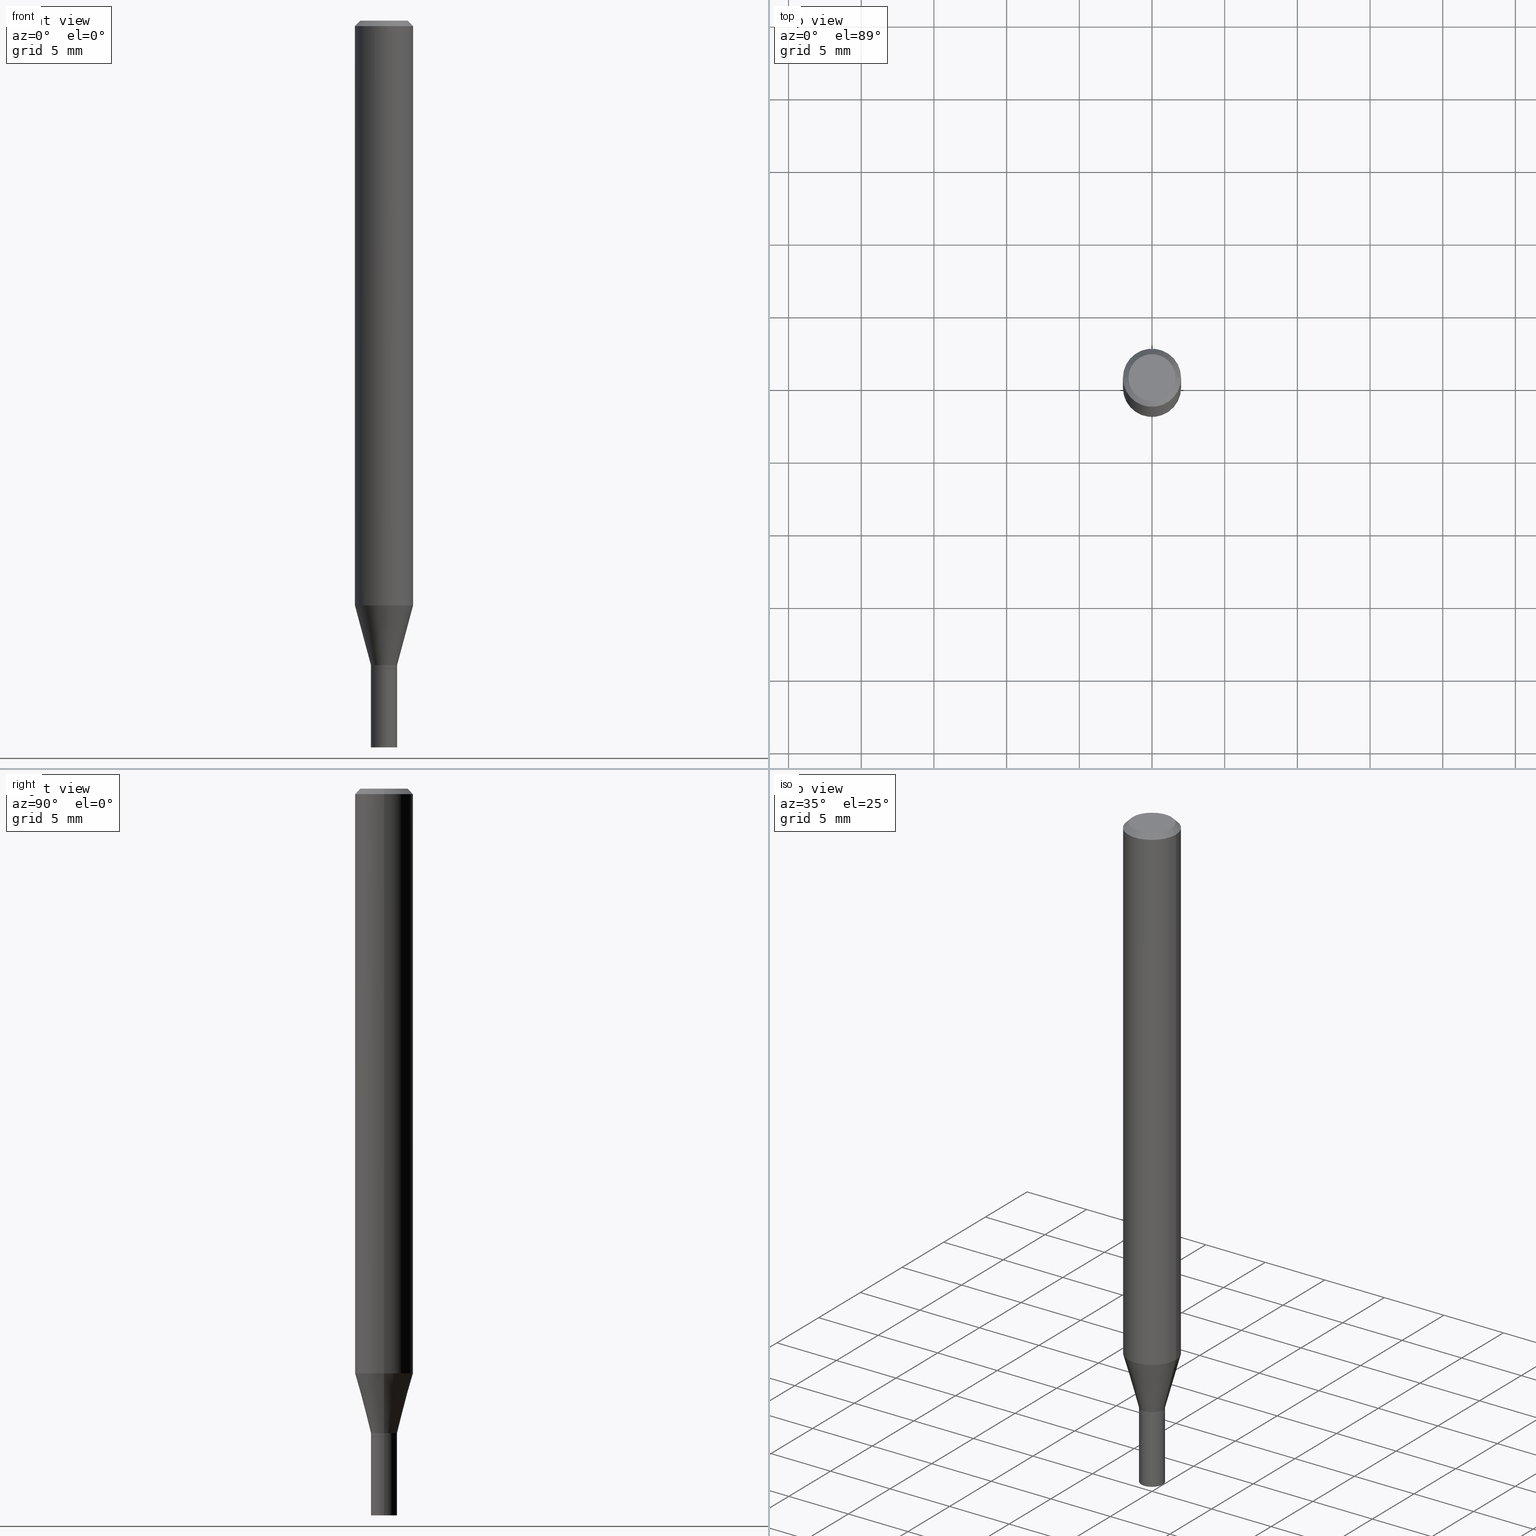
[diagram: canonical four-view strip — front | top / right | iso, engineering-drawing reading convention]
A machine part, canonical four-view strip (front | top / right | iso — engineering-drawing reading convention). The complete STEP part file that produces these views, byte-faithful:
ISO-10303-21;
HEADER;
FILE_DESCRIPTION (( 'STEP AP203' ),
    '1' );
FILE_NAME ('01891.STEP',
    '2024-03-20T02:31:54',
    ( '' ),
    ( '' ),
    'SwSTEP 2.0',
    'SolidWorks 2023',
    '' );
FILE_SCHEMA (( 'CONFIG_CONTROL_DESIGN' ));
ENDSEC;

DATA;
#1 = PERSON_AND_ORGANIZATION ( #408, #456 ) ;
#2 = DIRECTION ( 'NONE',  ( 1.000000000000000000, -6.982962677686254089E-15, 0.000000000000000000 ) ) ;
#3 = DIMENSIONAL_EXPONENTS ( 1.000000000000000000, 0.000000000000000000, 0.000000000000000000, 0.000000000000000000, 0.000000000000000000, 0.000000000000000000, 0.000000000000000000 ) ;
#4 = DIRECTION ( 'NONE',  ( 0.000000000000000000, 0.000000000000000000, 1.000000000000000000 ) ) ;
#5 = DIRECTION ( 'NONE',  ( -2.445468806185136597E-29, 3.491481338843145583E-15, 1.000000000000000000 ) ) ;
#6 = ADVANCED_FACE ( 'NONE', ( #333 ), #220, .T. ) ;
#7 = DIRECTION ( 'NONE',  ( 1.000000000000000000, 0.000000000000000000, 0.000000000000000000 ) ) ;
#8 = DIRECTION ( 'NONE',  ( -2.445468806185136597E-29, 3.491481338843145583E-15, 1.000000000000000000 ) ) ;
#9 = AXIS2_PLACEMENT_3D ( 'NONE', #32, #317, #66 ) ;
#10 = AXIS2_PLACEMENT_3D ( 'NONE', #104, #352, #25 ) ;
#11 = AXIS2_PLACEMENT_3D ( 'NONE', #365, #225, #231 ) ;
#12 = DIRECTION ( 'NONE',  ( 1.000000000000000000, -6.982962677686268288E-15, 0.000000000000000000 ) ) ;
#13 = DIRECTION ( 'NONE',  ( -2.445468806185136597E-29, 3.491481338843145583E-15, 1.000000000000000000 ) ) ;
#14 = CARTESIAN_POINT ( 'NONE',  ( 0.03495000000000000190, -6.374746628459814078E-15, -1.755899999999999794 ) ) ;
#15 = AXIS2_PLACEMENT_3D ( 'NONE', #98, #13, #205 ) ;
#16 = DIRECTION ( 'NONE',  ( 1.000000000000000000, -6.982962677686254089E-15, 0.000000000000000000 ) ) ;
#17 = DIRECTION ( 'NONE',  ( -2.445468806185136597E-29, 3.491481338843145583E-15, 1.000000000000000000 ) ) ;
#18 = ADVANCED_FACE ( 'NONE', ( #300 ), #258, .T. ) ;
#19 = LINE ( 'NONE', #133, #283 ) ;
#20 = APPLICATION_CONTEXT ( 'configuration controlled 3d designs of mechanical parts and assemblies' ) ;
#21 = AXIS2_PLACEMENT_3D ( 'NONE', #199, #122, #341 ) ;
#22 = CARTESIAN_POINT ( 'NONE',  ( 3.873383422226918900E-29, -5.530164973965262003E-15, -1.583902200032266672 ) ) ;
#23 = EDGE_LOOP ( 'NONE', ( #271, #255, #378, #165 ) ) ;
#24 = ADVANCED_FACE ( 'NONE', ( #156 ), #336, .F. ) ;
#25 = DIRECTION ( 'NONE',  ( 1.000000000000000000, -6.982962677686265922E-15, 4.876176775795935232E-29 ) ) ;
#26 = EDGE_LOOP ( 'NONE', ( #328, #29, #183, #274 ) ) ;
#27 = EDGE_CURVE ( 'NONE', #407, #72, #39, .T. ) ;
#28 =( LENGTH_UNIT ( ) NAMED_UNIT ( * ) SI_UNIT ( $, .METRE. ) );
#29 = ORIENTED_EDGE ( 'NONE', *, *, #413, .T. ) ;
#30 = VECTOR ( 'NONE', #356, 39.37007874015747433 ) ;
#31 = LOCAL_TIME ( 22, 31, 54.00000000000000000, #115 ) ;
#32 = CARTESIAN_POINT ( 'NONE',  ( 3.668203209277705088E-31, -5.237222008264718399E-17, -0.01499999999999999944 ) ) ;
#33 = VERTEX_POINT ( 'NONE', #228 ) ;
#34 = CARTESIAN_POINT ( 'NONE',  ( 0.000000000000000000, 0.000000000000000000, 0.000000000000000000 ) ) ;
#35 = EDGE_CURVE ( 'NONE', #194, #360, #236, .T. ) ;
#36 = ORIENTED_EDGE ( 'NONE', *, *, #213, .T. ) ;
#37 = APPROVAL ( #80, 'UNSPECIFIED' ) ;
#38 = PERSON_AND_ORGANIZATION_ROLE ( 'design_supplier' ) ;
#39 = LINE ( 'NONE', #192, #75 ) ;
#40 =( NAMED_UNIT ( * ) PLANE_ANGLE_UNIT ( ) SI_UNIT ( $, .RADIAN. ) );
#41 = AXIS2_PLACEMENT_3D ( 'NONE', #96, #412, #93 ) ;
#42 = CARTESIAN_POINT ( 'NONE',  ( -0.03544999999999964846, -5.877058942378305469E-15, -1.755400000000000071 ) ) ;
#43 = CC_DESIGN_SECURITY_CLASSIFICATION ( #350, ( #219 ) ) ;
#44 = ADVANCED_FACE ( 'NONE', ( #89 ), #147, .T. ) ;
#45 = COORDINATED_UNIVERSAL_TIME_OFFSET ( 5, 0, .BEHIND. ) ;
#46 = ORIENTED_EDGE ( 'NONE', *, *, #453, .T. ) ;
#47 = CALENDAR_DATE ( 2024, 19, 3 ) ;
#48 = DIRECTION ( 'NONE',  ( -2.445468806185136597E-29, 3.491481338843145583E-15, 1.000000000000000000 ) ) ;
#49 = COORDINATED_UNIVERSAL_TIME_OFFSET ( 5, 0, .BEHIND. ) ;
#50 = DIRECTION ( 'NONE',  ( 1.000000000000000000, -6.982962677686269866E-15, 0.000000000000000000 ) ) ;
#51 = AXIS2_PLACEMENT_3D ( 'NONE', #61, #282, #235 ) ;
#52 = CC_DESIGN_APPROVAL ( #417, ( #135 ) ) ;
#53 = DIRECTION ( 'NONE',  ( -2.445468806185136597E-29, 3.491481338843145583E-15, 1.000000000000000000 ) ) ;
#54 = APPROVAL ( #78, 'UNSPECIFIED' ) ;
#55 = DIRECTION ( 'NONE',  ( -2.445468806185136597E-29, 3.491481338843145583E-15, 1.000000000000000000 ) ) ;
#56 = SHAPE_DEFINITION_REPRESENTATION ( #214, #388 ) ;
#57 = DIRECTION ( 'NONE',  ( 1.000000000000000000, -6.982962677686265922E-15, 0.000000000000000000 ) ) ;
#58 = CIRCLE ( 'NONE', #64, 0.07875000000000000056 ) ;
#59 = CC_DESIGN_PERSON_AND_ORGANIZATION_ASSIGNMENT ( #329, #432, ( #350 ) ) ;
#60 = DIRECTION ( 'NONE',  ( -2.445468806185136597E-29, 3.491481338843145583E-15, 1.000000000000000000 ) ) ;
#61 = CARTESIAN_POINT ( 'NONE',  ( 4.268565801196156073E-29, -6.094380676950710350E-15, -1.745500000000000052 ) ) ;
#62 = DIRECTION ( 'NONE',  ( 1.000000000000000000, -6.982962677686265922E-15, 4.876176775795935793E-29 ) ) ;
#63 = ORIENTED_EDGE ( 'NONE', *, *, #372, .T. ) ;
#64 = AXIS2_PLACEMENT_3D ( 'NONE', #22, #451, #420 ) ;
#65 = CLOSED_SHELL ( 'NONE', ( #398, #335, #367, #178 ) ) ;
#66 = DIRECTION ( 'NONE',  ( -1.000000000000000000, 6.982962677686265922E-15, 0.000000000000000000 ) ) ;
#67 = ORIENTED_EDGE ( 'NONE', *, *, #345, .F. ) ;
#68 = EDGE_CURVE ( 'NONE', #452, #208, #430, .T. ) ;
#69 = CARTESIAN_POINT ( 'NONE',  ( -0.03545000000000000234, -6.249949149366749676E-15, -1.968500000000000139 ) ) ;
#70 = ORIENTED_EDGE ( 'NONE', *, *, #280, .T. ) ;
#71 = CYLINDRICAL_SURFACE ( 'NONE', #357, 0.03545000000000000234 ) ;
#72 = VERTEX_POINT ( 'NONE', #302 ) ;
#73 = CIRCLE ( 'NONE', #132, 0.03545000000000000234 ) ;
#74 = LINE ( 'NONE', #291, #381 ) ;
#75 = VECTOR ( 'NONE', #373, 39.37007874015748143 ) ;
#76 = CIRCLE ( 'NONE', #15, 0.03495000000000000190 ) ;
#77 = ORIENTED_EDGE ( 'NONE', *, *, #453, .F. ) ;
#78 = APPROVAL_STATUS ( 'not_yet_approved' ) ;
#79 = EDGE_LOOP ( 'NONE', ( #175, #421 ) ) ;
#80 = APPROVAL_STATUS ( 'not_yet_approved' ) ;
#81 = CARTESIAN_POINT ( 'NONE',  ( 4.268565801196156073E-29, -6.094380676950710350E-15, -1.745500000000000052 ) ) ;
#82 = PERSON_AND_ORGANIZATION ( #408, #456 ) ;
#83 = AXIS2_PLACEMENT_3D ( 'NONE', #436, #187, #50 ) ;
#84 = CARTESIAN_POINT ( 'NONE',  ( 4.451638707024993845E-16, 0.06375000000000000111, -3.383373223977406317E-16 ) ) ;
#85 =( GEOMETRIC_REPRESENTATION_CONTEXT ( 3 ) GLOBAL_UNCERTAINTY_ASSIGNED_CONTEXT ( ( #181 ) ) GLOBAL_UNIT_ASSIGNED_CONTEXT ( ( #397, #40, #334 ) ) REPRESENTATION_CONTEXT ( 'NONE', 'WORKASPACE' ) );
#86 = CC_DESIGN_DATE_AND_TIME_ASSIGNMENT ( #224, #339, ( #135 ) ) ;
#87 = DATE_AND_TIME ( #297, #127 ) ;
#88 = ORIENTED_EDGE ( 'NONE', *, *, #94, .F. ) ;
#89 = FACE_OUTER_BOUND ( 'NONE', #351, .T. ) ;
#90 = CARTESIAN_POINT ( 'NONE',  ( 4.813905344975441835E-29, -6.872981015512731707E-15, -1.968500000000000139 ) ) ;
#91 = AXIS2_PLACEMENT_3D ( 'NONE', #90, #60, #16 ) ;
#92 = CARTESIAN_POINT ( 'NONE',  ( 4.293998676780481075E-29, -6.130692082874678413E-15, -1.755899999999999794 ) ) ;
#93 = DIRECTION ( 'NONE',  ( 1.000000000000000000, -6.982962677686267499E-15, 4.876176775795936353E-29 ) ) ;
#94 = EDGE_CURVE ( 'NONE', #177, #102, #296, .T. ) ;
#95 = ADVANCED_FACE ( 'NONE', ( #330 ), #267, .T. ) ;
#96 = CARTESIAN_POINT ( 'NONE',  ( 0.000000000000000000, 0.000000000000000000, 0.000000000000000000 ) ) ;
#97 = CIRCLE ( 'NONE', #276, 0.03544999999999965540 ) ;
#98 = CARTESIAN_POINT ( 'NONE',  ( 4.293998676780481075E-29, -6.130692082874678413E-15, -1.755899999999999794 ) ) ;
#99 = DIRECTION ( 'NONE',  ( -2.445468806185136597E-29, 3.491481338843145583E-15, 1.000000000000000000 ) ) ;
#100 = VERTEX_POINT ( 'NONE', #163 ) ;
#101 = FACE_OUTER_BOUND ( 'NONE', #247, .T. ) ;
#102 = VERTEX_POINT ( 'NONE', #42 ) ;
#103 = AXIS2_PLACEMENT_3D ( 'NONE', #106, #391, #462 ) ;
#104 = CARTESIAN_POINT ( 'NONE',  ( 0.000000000000000000, 0.000000000000000000, 0.000000000000000000 ) ) ;
#105 = ORIENTED_EDGE ( 'NONE', *, *, #251, .T. ) ;
#106 = CARTESIAN_POINT ( 'NONE',  ( 3.873383422226918900E-29, -5.530164973965262003E-15, -1.583902200032266672 ) ) ;
#107 = ORIENTED_EDGE ( 'NONE', *, *, #312, .F. ) ;
#108 = EDGE_CURVE ( 'NONE', #72, #306, #260, .T. ) ;
#109 = DIRECTION ( 'NONE',  ( -0.7071067811865530128, 2.468850131082314253E-15, -0.7071067811865420216 ) ) ;
#110 = ORIENTED_EDGE ( 'NONE', *, *, #222, .F. ) ;
#111 = AXIS2_PLACEMENT_3D ( 'NONE', #233, #48, #149 ) ;
#112 = APPROVAL_STATUS ( 'not_yet_approved' ) ;
#113 = AXIS2_PLACEMENT_3D ( 'NONE', #81, #305, #12 ) ;
#114 = VERTEX_POINT ( 'NONE', #298 ) ;
#115 = COORDINATED_UNIVERSAL_TIME_OFFSET ( 5, 0, .BEHIND. ) ;
#116 = EDGE_CURVE ( 'NONE', #292, #177, #191, .T. ) ;
#117 = CARTESIAN_POINT ( 'NONE',  ( 3.668203209277705088E-31, -5.237222008264718399E-17, -0.01499999999999999944 ) ) ;
#118 = DATE_AND_TIME ( #150, #395 ) ;
#119 = FACE_OUTER_BOUND ( 'NONE', #79, .T. ) ;
#120 = CONICAL_SURFACE ( 'NONE', #126, 0.03495000000000000190, 0.7853981633974739252 ) ;
#121 = PERSON_AND_ORGANIZATION_ROLE ( 'creator' ) ;
#122 = DIRECTION ( 'NONE',  ( -2.445468806185136597E-29, 3.491481338843145583E-15, 1.000000000000000000 ) ) ;
#123 = CARTESIAN_POINT ( 'NONE',  ( 4.813905344975441835E-29, -6.872981015512731707E-15, -1.968500000000000139 ) ) ;
#124 = DIRECTION ( 'NONE',  ( -2.445468806185136597E-29, 3.491481338843145583E-15, 1.000000000000000000 ) ) ;
#125 = DIRECTION ( 'NONE',  ( 1.000000000000000000, -6.982962677686269866E-15, 0.000000000000000000 ) ) ;
#126 = AXIS2_PLACEMENT_3D ( 'NONE', #92, #202, #237 ) ;
#127 = LOCAL_TIME ( 22, 31, 54.00000000000000000, #45 ) ;
#128 = DIRECTION ( 'NONE',  ( -2.445468806185136877E-29, 3.491481338843145188E-15, 1.000000000000000000 ) ) ;
#129 = DIRECTION ( 'NONE',  ( 1.000000000000000000, -6.982962677686265922E-15, 4.876176775795935232E-29 ) ) ;
#130 = FACE_OUTER_BOUND ( 'NONE', #139, .T. ) ;
#131 = AXIS2_PLACEMENT_3D ( 'NONE', #184, #211, #359 ) ;
#132 = AXIS2_PLACEMENT_3D ( 'NONE', #377, #55, #344 ) ;
#133 = CARTESIAN_POINT ( 'NONE',  ( -0.03545000000000000234, 2.518873998269555325E-16, -1.743762489495364089E-30 ) ) ;
#134 = ORIENTED_EDGE ( 'NONE', *, *, #94, .T. ) ;
#135 = PRODUCT_DEFINITION ( 'UNKNOWN', '', #219, #140 ) ;
#136 = FACE_OUTER_BOUND ( 'NONE', #318, .T. ) ;
#137 = ORIENTED_EDGE ( 'NONE', *, *, #312, .T. ) ;
#138 = LINE ( 'NONE', #287, #198 ) ;
#139 = EDGE_LOOP ( 'NONE', ( #450, #36, #238, #294 ) ) ;
#140 = DESIGN_CONTEXT ( 'detailed design', #20, 'design' ) ;
#141 = DIRECTION ( 'NONE',  ( -0.7071067811865656694, 7.493145998870420424E-15, 0.7071067811865294761 ) ) ;
#142 = ORIENTED_EDGE ( 'NONE', *, *, #27, .T. ) ;
#143 = CARTESIAN_POINT ( 'NONE',  ( 0.07875000000000000056, -6.080073284833056138E-15, -1.583902200032266672 ) ) ;
#144 = ORIENTED_EDGE ( 'NONE', *, *, #402, .T. ) ;
#145 = DIRECTION ( 'NONE',  ( -2.438088387897960049E-29, 3.491481338843145188E-15, 1.000000000000000000 ) ) ;
#146 = ORIENTED_EDGE ( 'NONE', *, *, #326, .F. ) ;
#147 = CONICAL_SURFACE ( 'NONE', #111, 0.03544999999999965540, 0.2617993877991501295 ) ;
#148 = PERSON_AND_ORGANIZATION ( #408, #456 ) ;
#149 = DIRECTION ( 'NONE',  ( 1.000000000000000000, -6.982962677686268288E-15, 0.000000000000000000 ) ) ;
#150 = CALENDAR_DATE ( 2024, 19, 3 ) ;
#151 = ADVANCED_FACE ( 'NONE', ( #119 ), #404, .F. ) ;
#152 = DIRECTION ( 'NONE',  ( 1.000000000000000000, -6.982962677686265922E-15, 0.000000000000000000 ) ) ;
#153 = PRODUCT ( '01891', '01891', '', ( #158 ) ) ;
#154 = PERSON_AND_ORGANIZATION ( #408, #456 ) ;
#155 = MANIFOLD_SOLID_BREP ( 'Body-Move/Copy2[2]', #310 ) ;
#156 = FACE_OUTER_BOUND ( 'NONE', #466, .T. ) ;
#157 = CIRCLE ( 'NONE', #131, 0.03495000000000000190 ) ;
#158 = MECHANICAL_CONTEXT ( 'NONE', #275, 'mechanical' ) ;
#159 = ORIENTED_EDGE ( 'NONE', *, *, #160, .F. ) ;
#160 = EDGE_CURVE ( 'NONE', #100, #33, #331, .T. ) ;
#161 = CC_DESIGN_DATE_AND_TIME_ASSIGNMENT ( #264, #434, ( #350 ) ) ;
#162 = MANIFOLD_SOLID_BREP ( 'Body-Move/Copy2[1]', #65 ) ;
#163 = CARTESIAN_POINT ( 'NONE',  ( -0.06375000000000000111, 4.713499807438225296E-16, -2.315107740929834566E-16 ) ) ;
#164 = DIRECTION ( 'NONE',  ( 1.000000000000000000, -6.982962677686265922E-15, 4.852736867747365646E-29 ) ) ;
#165 = ORIENTED_EDGE ( 'NONE', *, *, #195, .F. ) ;
#166 = EDGE_CURVE ( 'NONE', #102, #114, #170, .T. ) ;
#167 = FACE_OUTER_BOUND ( 'NONE', #23, .T. ) ;
#168 = DIRECTION ( 'NONE',  ( -2.445468806185136877E-29, 3.491481338843145188E-15, 1.000000000000000000 ) ) ;
#169 = CC_DESIGN_PERSON_AND_ORGANIZATION_ASSIGNMENT ( #272, #464, ( #153 ) ) ;
#170 = LINE ( 'NONE', #240, #248 ) ;
#171 = DIRECTION ( 'NONE',  ( -1.000000000000000000, 6.982962677686265922E-15, -4.876176775795935793E-29 ) ) ;
#172 = AXIS2_PLACEMENT_3D ( 'NONE', #448, #314, #171 ) ;
#173 = AXIS2_PLACEMENT_3D ( 'NONE', #362, #370, #433 ) ;
#174 = LINE ( 'NONE', #319, #241 ) ;
#175 = ORIENTED_EDGE ( 'NONE', *, *, #160, .T. ) ;
#176 = CARTESIAN_POINT ( 'NONE',  ( -0.03545000000000000234, -6.249949149366749676E-15, -1.755900000000000016 ) ) ;
#177 = VERTEX_POINT ( 'NONE', #444 ) ;
#178 = ADVANCED_FACE ( 'NONE', ( #277 ), #278, .F. ) ;
#179 = ORIENTED_EDGE ( 'NONE', *, *, #389, .T. ) ;
#180 = VECTOR ( 'NONE', #252, 39.37007874015748143 ) ;
#181 = UNCERTAINTY_MEASURE_WITH_UNIT (LENGTH_MEASURE( 1.000000000000000082E-05 ), #397, 'distance_accuracy_value', 'NONE');
#182 = CYLINDRICAL_SURFACE ( 'NONE', #446, 0.03545000000000000234 ) ;
#183 = ORIENTED_EDGE ( 'NONE', *, *, #345, .T. ) ;
#184 = CARTESIAN_POINT ( 'NONE',  ( 4.293998676780481075E-29, -6.130692082874678413E-15, -1.755899999999999794 ) ) ;
#185 = EDGE_LOOP ( 'NONE', ( #212, #63, #322, #77 ) ) ;
#186 = SECURITY_CLASSIFICATION_LEVEL ( 'unclassified' ) ;
#187 = DIRECTION ( 'NONE',  ( -2.445468806185136597E-29, 3.491481338843145583E-15, 1.000000000000000000 ) ) ;
#188 = EDGE_CURVE ( 'NONE', #33, #100, #256, .T. ) ;
#189 = AXIS2_PLACEMENT_3D ( 'NONE', #440, #17, #125 ) ;
#190 = CALENDAR_DATE ( 2024, 19, 3 ) ;
#191 = LINE ( 'NONE', #435, #374 ) ;
#192 = CARTESIAN_POINT ( 'NONE',  ( -0.07875000000000000056, 5.595524044110789003E-16, -3.873661383575737792E-30 ) ) ;
#193 = EDGE_CURVE ( 'NONE', #360, #452, #19, .T. ) ;
#194 = VERTEX_POINT ( 'NONE', #311 ) ;
#195 = EDGE_CURVE ( 'NONE', #114, #215, #97, .T. ) ;
#196 = VECTOR ( 'NONE', #384, 39.37007874015748143 ) ;
#197 = CARTESIAN_POINT ( 'NONE',  ( 0.000000000000000000, 0.000000000000000000, 0.000000000000000000 ) ) ;
#198 = VECTOR ( 'NONE', #354, 39.37007874015747433 ) ;
#199 = CARTESIAN_POINT ( 'NONE',  ( 0.000000000000000000, 0.000000000000000000, 0.000000000000000000 ) ) ;
#200 = AXIS2_PLACEMENT_3D ( 'NONE', #244, #201, #57 ) ;
#201 = DIRECTION ( 'NONE',  ( -2.445468806185136597E-29, 3.491481338843145583E-15, 1.000000000000000000 ) ) ;
#202 = DIRECTION ( 'NONE',  ( -2.445468806185136597E-29, 3.491481338843145583E-15, 1.000000000000000000 ) ) ;
#203 = CARTESIAN_POINT ( 'NONE',  ( 0.07875000000000000056, -6.022805309504406221E-16, -0.01499999999999999944 ) ) ;
#204 = LOCAL_TIME ( 22, 31, 54.00000000000000000, #49 ) ;
#205 = DIRECTION ( 'NONE',  ( 1.000000000000000000, -6.982962677686267499E-15, 0.000000000000000000 ) ) ;
#206 = CARTESIAN_POINT ( 'NONE',  ( 5.661523763401571692E-45, -8.083155474867715899E-31, -2.315107740929802519E-16 ) ) ;
#207 = FACE_OUTER_BOUND ( 'NONE', #428, .T. ) ;
#208 = VERTEX_POINT ( 'NONE', #313 ) ;
#209 = CIRCLE ( 'NONE', #91, 0.03545000000000000234 ) ;
#210 = APPROVAL_PERSON_ORGANIZATION ( #405, #54, #227 ) ;
#211 = DIRECTION ( 'NONE',  ( -2.445468806185136597E-29, 3.491481338843145583E-15, 1.000000000000000000 ) ) ;
#212 = ORIENTED_EDGE ( 'NONE', *, *, #226, .T. ) ;
#213 = EDGE_CURVE ( 'NONE', #463, #292, #76, .T. ) ;
#214 = PRODUCT_DEFINITION_SHAPE ( 'NONE', 'NONE',  #135 ) ;
#215 = VERTEX_POINT ( 'NONE', #284 ) ;
#216 = CARTESIAN_POINT ( 'NONE',  ( 0.000000000000000000, 0.000000000000000000, 0.000000000000000000 ) ) ;
#217 = ORIENTED_EDGE ( 'NONE', *, *, #166, .T. ) ;
#218 = CONICAL_SURFACE ( 'NONE', #9, 0.07875000000000000056, 0.7853981633974560506 ) ;
#219 = PRODUCT_DEFINITION_FORMATION_WITH_SPECIFIED_SOURCE ( 'ANY', '', #153, .NOT_KNOWN. ) ;
#220 = CONICAL_SURFACE ( 'NONE', #11, 0.07875000000000000056, 0.7853981633974560506 ) ;
#221 = DIRECTION ( 'NONE',  ( -2.445468806185136597E-29, 3.491481338843145583E-15, 1.000000000000000000 ) ) ;
#222 = EDGE_CURVE ( 'NONE', #360, #194, #209, .T. ) ;
#223 = EDGE_LOOP ( 'NONE', ( #179, #253, #88, #419 ) ) ;
#224 = DATE_AND_TIME ( #47, #204 ) ;
#225 = DIRECTION ( 'NONE',  ( 2.445468806185136597E-29, -3.491481338843145583E-15, -1.000000000000000000 ) ) ;
#226 = EDGE_CURVE ( 'NONE', #215, #114, #415, .T. ) ;
#227 = APPROVAL_ROLE ( '' ) ;
#228 = CARTESIAN_POINT ( 'NONE',  ( 0.06375000000000000111, -5.149965923825456210E-16, -2.315107740929768499E-16 ) ) ;
#229 = AXIS2_PLACEMENT_3D ( 'NONE', #348, #53, #164 ) ;
#230 = DIRECTION ( 'NONE',  ( 2.438088387897960049E-29, -3.491481338843145188E-15, -1.000000000000000000 ) ) ;
#231 = DIRECTION ( 'NONE',  ( -1.000000000000000000, 6.982962677686265922E-15, 0.000000000000000000 ) ) ;
#232 = COORDINATED_UNIVERSAL_TIME_OFFSET ( 5, 0, .BEHIND. ) ;
#233 = CARTESIAN_POINT ( 'NONE',  ( 4.268565801196156073E-29, -6.094380676950710350E-15, -1.745500000000000052 ) ) ;
#234 = AXIS2_PLACEMENT_3D ( 'NONE', #206, #346, #442 ) ;
#235 = DIRECTION ( 'NONE',  ( 1.000000000000000000, -6.982962677686268288E-15, 0.000000000000000000 ) ) ;
#236 = CIRCLE ( 'NONE', #316, 0.03545000000000000234 ) ;
#237 = DIRECTION ( 'NONE',  ( 1.000000000000000000, -6.982962677686267499E-15, 0.000000000000000000 ) ) ;
#238 = ORIENTED_EDGE ( 'NONE', *, *, #116, .T. ) ;
#239 = ADVANCED_FACE ( 'NONE', ( #347 ), #376, .T. ) ;
#240 = CARTESIAN_POINT ( 'NONE',  ( -0.03544999999999964846, 2.518873998269530180E-16, -1.743762489495346923E-30 ) ) ;
#241 = VECTOR ( 'NONE', #285, 39.37007874015748143 ) ;
#242 = DIRECTION ( 'NONE',  ( 1.000000000000000000, -6.982962677686268288E-15, 0.000000000000000000 ) ) ;
#243 = ADVANCED_FACE ( 'NONE', ( #130 ), #465, .T. ) ;
#244 = CARTESIAN_POINT ( 'NONE',  ( 3.668203209277705088E-31, -5.237222008264718399E-17, -0.01499999999999999944 ) ) ;
#245 = CARTESIAN_POINT ( 'NONE',  ( 0.07875000000000000056, -5.926364374071552647E-16, -0.01499999999999999944 ) ) ;
#246 = CYLINDRICAL_SURFACE ( 'NONE', #10, 0.07875000000000000056 ) ;
#247 = EDGE_LOOP ( 'NONE', ( #386, #142, #458, #67 ) ) ;
#248 = VECTOR ( 'NONE', #168, 39.37007874015748143 ) ;
#249 = CARTESIAN_POINT ( 'NONE',  ( 0.03545000000000000234, -2.475460269239781793E-16, 1.728604667019659440E-30 ) ) ;
#250 = ORIENTED_EDGE ( 'NONE', *, *, #280, .F. ) ;
#251 = EDGE_CURVE ( 'NONE', #306, #72, #366, .T. ) ;
#252 = DIRECTION ( 'NONE',  ( -2.445468806185136877E-29, 3.491481338843145188E-15, 1.000000000000000000 ) ) ;
#253 = ORIENTED_EDGE ( 'NONE', *, *, #342, .T. ) ;
#254 = LINE ( 'NONE', #385, #180 ) ;
#255 = ORIENTED_EDGE ( 'NONE', *, *, #259, .T. ) ;
#256 = CIRCLE ( 'NONE', #229, 0.06375000000000000111 ) ;
#257 = CC_DESIGN_APPROVAL ( #37, ( #350 ) ) ;
#258 = CONICAL_SURFACE ( 'NONE', #113, 0.03544999999999965540, 0.2617993877991501295 ) ;
#259 = EDGE_CURVE ( 'NONE', #102, #177, #441, .T. ) ;
#260 = CIRCLE ( 'NONE', #304, 0.07875000000000000056 ) ;
#261 = PERSON_AND_ORGANIZATION ( #408, #456 ) ;
#262 = CC_DESIGN_PERSON_AND_ORGANIZATION_ASSIGNMENT ( #261, #361, ( #219 ) ) ;
#263 = ORIENTED_EDGE ( 'NONE', *, *, #193, .F. ) ;
#264 = DATE_AND_TIME ( #190, #31 ) ;
#265 = DIRECTION ( 'NONE',  ( 0.7071067811865656694, -2.468850131082446387E-15, 0.7071067811865294761 ) ) ;
#266 = APPROVAL_DATE_TIME ( #118, #37 ) ;
#267 = CYLINDRICAL_SURFACE ( 'NONE', #21, 0.03544999999999964846 ) ;
#268 = ADVANCED_FACE ( 'NONE', ( #414 ), #120, .T. ) ;
#269 = CC_DESIGN_APPROVAL ( #54, ( #219 ) ) ;
#270 = DATE_AND_TIME ( #301, #338 ) ;
#271 = ORIENTED_EDGE ( 'NONE', *, *, #166, .F. ) ;
#272 = PERSON_AND_ORGANIZATION ( #408, #456 ) ;
#273 = DIRECTION ( 'NONE',  ( 1.000000000000000000, -6.982962677686254089E-15, 0.000000000000000000 ) ) ;
#274 = ORIENTED_EDGE ( 'NONE', *, *, #108, .F. ) ;
#275 = APPLICATION_CONTEXT ( 'configuration controlled 3d designs of mechanical parts and assemblies' ) ;
#276 = AXIS2_PLACEMENT_3D ( 'NONE', #383, #343, #242 ) ;
#277 = FACE_OUTER_BOUND ( 'NONE', #426, .T. ) ;
#278 = PLANE ( 'NONE',  #172 ) ;
#279 = LINE ( 'NONE', #382, #308 ) ;
#280 = EDGE_CURVE ( 'NONE', #208, #452, #73, .T. ) ;
#281 = AXIS2_PLACEMENT_3D ( 'NONE', #409, #8, #2 ) ;
#282 = DIRECTION ( 'NONE',  ( -2.445468806185136597E-29, 3.491481338843145583E-15, 1.000000000000000000 ) ) ;
#283 = VECTOR ( 'NONE', #128, 39.37007874015748143 ) ;
#284 = CARTESIAN_POINT ( 'NONE',  ( 0.03544999999999965540, -6.341926703874685867E-15, -1.745500000000000052 ) ) ;
#285 = DIRECTION ( 'NONE',  ( -2.445468806185136877E-29, 3.491481338843145188E-15, 1.000000000000000000 ) ) ;
#286 = ORIENTED_EDGE ( 'NONE', *, *, #372, .F. ) ;
#287 = CARTESIAN_POINT ( 'NONE',  ( 0.03544999999999965540, -6.341926703874685867E-15, -1.745500000000000052 ) ) ;
#288 = ORIENTED_EDGE ( 'NONE', *, *, #188, .F. ) ;
#289 = AXIS2_PLACEMENT_3D ( 'NONE', #380, #416, #411 ) ;
#290 = APPROVAL_PERSON_ORGANIZATION ( #82, #37, #403 ) ;
#291 = CARTESIAN_POINT ( 'NONE',  ( -0.03495000000000000190, -5.882357396726523927E-15, -1.755899999999999794 ) ) ;
#292 = VERTEX_POINT ( 'NONE', #14 ) ;
#293 = CARTESIAN_POINT ( 'NONE',  ( -0.03544999999999965540, -5.842493277123757332E-15, -1.745500000000000052 ) ) ;
#294 = ORIENTED_EDGE ( 'NONE', *, *, #259, .F. ) ;
#295 = ORIENTED_EDGE ( 'NONE', *, *, #35, .F. ) ;
#296 = CIRCLE ( 'NONE', #83, 0.03544999999999964846 ) ;
#297 = CALENDAR_DATE ( 2024, 19, 3 ) ;
#298 = CARTESIAN_POINT ( 'NONE',  ( -0.03544999999999965540, -5.406552923338970267E-15, -1.745500000000000052 ) ) ;
#299 = APPROVAL_ROLE ( '' ) ;
#300 = FACE_OUTER_BOUND ( 'NONE', #185, .T. ) ;
#301 = CALENDAR_DATE ( 2024, 19, 3 ) ;
#302 = CARTESIAN_POINT ( 'NONE',  ( -0.07875000000000000056, -2.231716192612875937E-15, -0.01499999999999999944 ) ) ;
#303 = ADVANCED_FACE ( 'NONE', ( #167 ), #309, .T. ) ;
#304 = AXIS2_PLACEMENT_3D ( 'NONE', #117, #124, #152 ) ;
#305 = DIRECTION ( 'NONE',  ( -2.445468806185136597E-29, 3.491481338843145583E-15, 1.000000000000000000 ) ) ;
#306 = VERTEX_POINT ( 'NONE', #203 ) ;
#307 = CARTESIAN_POINT ( 'NONE',  ( 0.000000000000000000, 0.000000000000000000, 0.000000000000000000 ) ) ;
#308 = VECTOR ( 'NONE', #109, 39.37007874015748143 ) ;
#309 = CYLINDRICAL_SURFACE ( 'NONE', #41, 0.03544999999999964846 ) ;
#310 = CLOSED_SHELL ( 'NONE', ( #95, #268, #379, #445, #18, #44, #239, #6, #151, #24, #243, #303 ) ) ;
#311 = CARTESIAN_POINT ( 'NONE',  ( 0.03545000000000000234, -7.120527042436709591E-15, -1.968500000000000139 ) ) ;
#312 = EDGE_CURVE ( 'NONE', #100, #72, #279, .T. ) ;
#313 = CARTESIAN_POINT ( 'NONE',  ( 0.03545000000000000234, -6.378238109798657085E-15, -1.755900000000000016 ) ) ;
#314 = DIRECTION ( 'NONE',  ( 2.438088387897960049E-29, -3.491481338843145188E-15, -1.000000000000000000 ) ) ;
#315 = ORIENTED_EDGE ( 'NONE', *, *, #389, .F. ) ;
#316 = AXIS2_PLACEMENT_3D ( 'NONE', #123, #5, #273 ) ;
#317 = DIRECTION ( 'NONE',  ( 2.445468806185136597E-29, -3.491481338843145583E-15, -1.000000000000000000 ) ) ;
#318 = EDGE_LOOP ( 'NONE', ( #295, #110 ) ) ;
#319 = CARTESIAN_POINT ( 'NONE',  ( 0.03544999999999964846, -2.475460269239757142E-16, 1.728604667019642274E-30 ) ) ;
#320 = VERTEX_POINT ( 'NONE', #143 ) ;
#321 = DIRECTION ( 'NONE',  ( 1.000000000000000000, -6.982962677686266711E-15, 4.876176775795935793E-29 ) ) ;
#322 = ORIENTED_EDGE ( 'NONE', *, *, #324, .F. ) ;
#323 = FACE_OUTER_BOUND ( 'NONE', #353, .T. ) ;
#324 = EDGE_CURVE ( 'NONE', #320, #407, #340, .T. ) ;
#325 = ORIENTED_EDGE ( 'NONE', *, *, #363, .F. ) ;
#326 = EDGE_CURVE ( 'NONE', #194, #208, #393, .T. ) ;
#327 = DIRECTION ( 'NONE',  ( -2.445468806185136877E-29, 3.491481338843145188E-15, 1.000000000000000000 ) ) ;
#328 = ORIENTED_EDGE ( 'NONE', *, *, #27, .F. ) ;
#329 = PERSON_AND_ORGANIZATION ( #408, #456 ) ;
#330 = FACE_OUTER_BOUND ( 'NONE', #337, .T. ) ;
#331 = CIRCLE ( 'NONE', #234, 0.06375000000000000111 ) ;
#332 = COORDINATED_UNIVERSAL_TIME_OFFSET ( 5, 0, .BEHIND. ) ;
#333 = FACE_OUTER_BOUND ( 'NONE', #358, .T. ) ;
#334 =( NAMED_UNIT ( * ) SI_UNIT ( $, .STERADIAN. ) SOLID_ANGLE_UNIT ( ) );
#335 = ADVANCED_FACE ( 'NONE', ( #136 ), #418, .F. ) ;
#336 = PLANE ( 'NONE',  #173 ) ;
#337 = EDGE_LOOP ( 'NONE', ( #134, #217, #355, #325 ) ) ;
#338 = LOCAL_TIME ( 22, 31, 54.00000000000000000, #232 ) ;
#339 = DATE_TIME_ROLE ( 'creation_date' ) ;
#340 = CIRCLE ( 'NONE', #103, 0.07875000000000000056 ) ;
#341 = DIRECTION ( 'NONE',  ( 1.000000000000000000, -6.982962677686267499E-15, 4.876176775795936353E-29 ) ) ;
#342 = EDGE_CURVE ( 'NONE', #463, #102, #74, .T. ) ;
#343 = DIRECTION ( 'NONE',  ( -2.445468806185136597E-29, 3.491481338843145583E-15, 1.000000000000000000 ) ) ;
#344 = DIRECTION ( 'NONE',  ( 1.000000000000000000, -6.982962677686254089E-15, 0.000000000000000000 ) ) ;
#345 = EDGE_CURVE ( 'NONE', #320, #306, #254, .T. ) ;
#346 = DIRECTION ( 'NONE',  ( -2.445468806185136597E-29, 3.491481338843145583E-15, 1.000000000000000000 ) ) ;
#347 = FACE_OUTER_BOUND ( 'NONE', #26, .T. ) ;
#348 = CARTESIAN_POINT ( 'NONE',  ( 5.661523763401571692E-45, -8.083155474867715899E-31, -2.315107740929802519E-16 ) ) ;
#349 = CARTESIAN_POINT ( 'NONE',  ( -0.07875000000000000056, -4.970612569554183991E-15, -1.583902200032266672 ) ) ;
#350 = SECURITY_CLASSIFICATION ( '', '', #186 ) ;
#351 = EDGE_LOOP ( 'NONE', ( #286, #394, #46, #431 ) ) ;
#352 = DIRECTION ( 'NONE',  ( -2.445468806185136597E-29, 3.491481338843145583E-15, 1.000000000000000000 ) ) ;
#353 = EDGE_LOOP ( 'NONE', ( #263, #401, #438, #392 ) ) ;
#354 = DIRECTION ( 'NONE',  ( 0.2588190451025214611, 1.565188264969621573E-15, 0.9659258262890682012 ) ) ;
#355 = ORIENTED_EDGE ( 'NONE', *, *, #226, .F. ) ;
#356 = DIRECTION ( 'NONE',  ( -0.2588190451025214611, 5.211531920934551042E-15, 0.9659258262890682012 ) ) ;
#357 = AXIS2_PLACEMENT_3D ( 'NONE', #216, #221, #321 ) ;
#358 = EDGE_LOOP ( 'NONE', ( #461, #159, #137, #387 ) ) ;
#359 = DIRECTION ( 'NONE',  ( 1.000000000000000000, -6.982962677686267499E-15, 0.000000000000000000 ) ) ;
#360 = VERTEX_POINT ( 'NONE', #69 ) ;
#361 = PERSON_AND_ORGANIZATION_ROLE ( 'creator' ) ;
#362 = CARTESIAN_POINT ( 'NONE',  ( 4.293998676780481075E-29, -6.130692082874678413E-15, -1.755899999999999794 ) ) ;
#363 = EDGE_CURVE ( 'NONE', #177, #215, #174, .T. ) ;
#364 = LENGTH_MEASURE_WITH_UNIT ( LENGTH_MEASURE( 0.02539999999999999897 ), #28 );
#365 = CARTESIAN_POINT ( 'NONE',  ( 3.668203209277705088E-31, -5.237222008264718399E-17, -0.01499999999999999944 ) ) ;
#366 = CIRCLE ( 'NONE', #200, 0.07875000000000000056 ) ;
#367 = ADVANCED_FACE ( 'NONE', ( #323 ), #71, .T. ) ;
#368 = APPLICATION_PROTOCOL_DEFINITION ( 'international standard', 'config_control_design', 1994, #20 ) ;
#369 = DIRECTION ( 'NONE',  ( -1.000000000000000000, 6.982962677686265922E-15, -4.876176775795935793E-29 ) ) ;
#370 = DIRECTION ( 'NONE',  ( -2.438088387897960049E-29, 3.491481338843145188E-15, 1.000000000000000000 ) ) ;
#371 = APPROVAL_DATE_TIME ( #270, #417 ) ;
#372 = EDGE_CURVE ( 'NONE', #114, #407, #427, .T. ) ;
#373 = DIRECTION ( 'NONE',  ( -2.445468806185136877E-29, 3.491481338843145188E-15, 1.000000000000000000 ) ) ;
#374 = VECTOR ( 'NONE', #265, 39.37007874015748143 ) ;
#375 = APPROVAL_PERSON_ORGANIZATION ( #154, #417, #299 ) ;
#376 = CYLINDRICAL_SURFACE ( 'NONE', #422, 0.07875000000000000056 ) ;
#377 = CARTESIAN_POINT ( 'NONE',  ( 4.293998676780481635E-29, -6.130692082874679991E-15, -1.755900000000000016 ) ) ;
#378 = ORIENTED_EDGE ( 'NONE', *, *, #363, .T. ) ;
#379 = ADVANCED_FACE ( 'NONE', ( #207 ), #218, .T. ) ;
#380 = CARTESIAN_POINT ( 'NONE',  ( 4.293998676780481075E-29, -6.130692082874678413E-15, -1.755899999999999794 ) ) ;
#381 = VECTOR ( 'NONE', #141, 39.37007874015748143 ) ;
#382 = CARTESIAN_POINT ( 'NONE',  ( -0.07875000000000000056, 4.975360907851462665E-16, -0.01499999999999999944 ) ) ;
#383 = CARTESIAN_POINT ( 'NONE',  ( 4.268565801196156073E-29, -6.094380676950710350E-15, -1.745500000000000052 ) ) ;
#384 = DIRECTION ( 'NONE',  ( 0.7071067811865530128, -7.319954787623274978E-15, -0.7071067811865420216 ) ) ;
#385 = CARTESIAN_POINT ( 'NONE',  ( 0.07875000000000000056, -5.499083108677934443E-16, 3.839989210939299016E-30 ) ) ;
#386 = ORIENTED_EDGE ( 'NONE', *, *, #324, .T. ) ;
#387 = ORIENTED_EDGE ( 'NONE', *, *, #108, .T. ) ;
#388 = ADVANCED_BREP_SHAPE_REPRESENTATION ( '01891', ( #162, #155, #447 ), #85 ) ;
#389 = EDGE_CURVE ( 'NONE', #292, #463, #157, .T. ) ;
#390 = CC_DESIGN_PERSON_AND_ORGANIZATION_ASSIGNMENT ( #148, #38, ( #219 ) ) ;
#391 = DIRECTION ( 'NONE',  ( -2.445468806185136597E-29, 3.491481338843145583E-15, 1.000000000000000000 ) ) ;
#392 = ORIENTED_EDGE ( 'NONE', *, *, #68, .F. ) ;
#393 = LINE ( 'NONE', #249, #396 ) ;
#394 = ORIENTED_EDGE ( 'NONE', *, *, #195, .T. ) ;
#395 = LOCAL_TIME ( 22, 31, 54.00000000000000000, #332 ) ;
#396 = VECTOR ( 'NONE', #327, 39.37007874015748143 ) ;
#397 =( CONVERSION_BASED_UNIT ( 'INCH', #364 ) LENGTH_UNIT ( ) NAMED_UNIT ( #3 ) );
#398 = ADVANCED_FACE ( 'NONE', ( #460 ), #182, .T. ) ;
#399 = EDGE_LOOP ( 'NONE', ( #424, #439, #250, #146 ) ) ;
#400 = APPROVAL_DATE_TIME ( #87, #54 ) ;
#401 = ORIENTED_EDGE ( 'NONE', *, *, #222, .T. ) ;
#402 = EDGE_CURVE ( 'NONE', #33, #306, #454, .T. ) ;
#403 = APPROVAL_ROLE ( '' ) ;
#404 = PLANE ( 'NONE',  #410 ) ;
#405 = PERSON_AND_ORGANIZATION ( #408, #456 ) ;
#406 = ORIENTED_EDGE ( 'NONE', *, *, #213, .F. ) ;
#407 = VERTEX_POINT ( 'NONE', #349 ) ;
#408 = PERSON ( 'UNSPECIFIED', 'UNSPECIFIED', 'UNSPECIFIED', ('UNSPECIFIED'), ('UNSPECIFIED'), ('UNSPECIFIED') ) ;
#409 = CARTESIAN_POINT ( 'NONE',  ( 4.293998676780481635E-29, -6.130692082874679991E-15, -1.755900000000000016 ) ) ;
#410 = AXIS2_PLACEMENT_3D ( 'NONE', #84, #230, #369 ) ;
#411 = DIRECTION ( 'NONE',  ( 1.000000000000000000, -6.982962677686267499E-15, 0.000000000000000000 ) ) ;
#412 = DIRECTION ( 'NONE',  ( -2.445468806185136597E-29, 3.491481338843145583E-15, 1.000000000000000000 ) ) ;
#413 = EDGE_CURVE ( 'NONE', #407, #320, #58, .T. ) ;
#414 = FACE_OUTER_BOUND ( 'NONE', #223, .T. ) ;
#415 = CIRCLE ( 'NONE', #51, 0.03544999999999965540 ) ;
#416 = DIRECTION ( 'NONE',  ( -2.445468806185136597E-29, 3.491481338843145583E-15, 1.000000000000000000 ) ) ;
#417 = APPROVAL ( #112, 'UNSPECIFIED' ) ;
#418 = PLANE ( 'NONE',  #449 ) ;
#419 = ORIENTED_EDGE ( 'NONE', *, *, #116, .F. ) ;
#420 = DIRECTION ( 'NONE',  ( 1.000000000000000000, -6.982962677686261977E-15, 0.000000000000000000 ) ) ;
#421 = ORIENTED_EDGE ( 'NONE', *, *, #188, .T. ) ;
#422 = AXIS2_PLACEMENT_3D ( 'NONE', #307, #443, #129 ) ;
#423 = CARTESIAN_POINT ( 'NONE',  ( -0.03495000000000000190, -5.879708169552414304E-15, -1.755899999999999794 ) ) ;
#424 = ORIENTED_EDGE ( 'NONE', *, *, #35, .T. ) ;
#425 = CARTESIAN_POINT ( 'NONE',  ( 4.848906058769445083E-29, -6.822858001242805551E-15, -1.968500000000000139 ) ) ;
#426 = EDGE_LOOP ( 'NONE', ( #70, #455 ) ) ;
#427 = LINE ( 'NONE', #293, #30 ) ;
#428 = EDGE_LOOP ( 'NONE', ( #288, #144, #105, #107 ) ) ;
#429 = APPLICATION_PROTOCOL_DEFINITION ( 'international standard', 'config_control_design', 1994, #275 ) ;
#430 = CIRCLE ( 'NONE', #281, 0.03545000000000000234 ) ;
#431 = ORIENTED_EDGE ( 'NONE', *, *, #413, .F. ) ;
#432 = PERSON_AND_ORGANIZATION_ROLE ( 'classification_officer' ) ;
#433 = DIRECTION ( 'NONE',  ( 1.000000000000000000, -6.982962677686265922E-15, 4.876176775795935793E-29 ) ) ;
#434 = DATE_TIME_ROLE ( 'classification_date' ) ;
#435 = CARTESIAN_POINT ( 'NONE',  ( 0.03495000000000000190, -6.374746628459814078E-15, -1.755899999999999794 ) ) ;
#436 = CARTESIAN_POINT ( 'NONE',  ( 4.292775942377388834E-29, -6.128946342205258487E-15, -1.755400000000000071 ) ) ;
#437 = PRODUCT_RELATED_PRODUCT_CATEGORY ( 'detail', '', ( #153 ) ) ;
#438 = ORIENTED_EDGE ( 'NONE', *, *, #326, .T. ) ;
#439 = ORIENTED_EDGE ( 'NONE', *, *, #193, .T. ) ;
#440 = CARTESIAN_POINT ( 'NONE',  ( 4.292775942377388834E-29, -6.128946342205258487E-15, -1.755400000000000071 ) ) ;
#441 = CIRCLE ( 'NONE', #189, 0.03544999999999964846 ) ;
#442 = DIRECTION ( 'NONE',  ( 1.000000000000000000, -6.982962677686265922E-15, 4.852736867747365646E-29 ) ) ;
#443 = DIRECTION ( 'NONE',  ( -2.445468806185136597E-29, 3.491481338843145583E-15, 1.000000000000000000 ) ) ;
#444 = CARTESIAN_POINT ( 'NONE',  ( 0.03544999999999964846, -6.376492369129234004E-15, -1.755400000000000071 ) ) ;
#445 = ADVANCED_FACE ( 'NONE', ( #101 ), #246, .T. ) ;
#446 = AXIS2_PLACEMENT_3D ( 'NONE', #34, #99, #457 ) ;
#447 = AXIS2_PLACEMENT_3D ( 'NONE', #197, #4, #7 ) ;
#448 = CARTESIAN_POINT ( 'NONE',  ( 2.475460269240210737E-16, 0.03544999999999387530, -1.755900000000000016 ) ) ;
#449 = AXIS2_PLACEMENT_3D ( 'NONE', #425, #145, #62 ) ;
#450 = ORIENTED_EDGE ( 'NONE', *, *, #342, .F. ) ;
#451 = DIRECTION ( 'NONE',  ( -2.445468806185136597E-29, 3.491481338843145583E-15, 1.000000000000000000 ) ) ;
#452 = VERTEX_POINT ( 'NONE', #176 ) ;
#453 = EDGE_CURVE ( 'NONE', #215, #320, #138, .T. ) ;
#454 = LINE ( 'NONE', #245, #196 ) ;
#455 = ORIENTED_EDGE ( 'NONE', *, *, #68, .T. ) ;
#456 = ORGANIZATION ( 'UNSPECIFIED', 'UNSPECIFIED', '' ) ;
#457 = DIRECTION ( 'NONE',  ( 1.000000000000000000, -6.982962677686266711E-15, 4.876176775795935793E-29 ) ) ;
#458 = ORIENTED_EDGE ( 'NONE', *, *, #251, .F. ) ;
#459 = CC_DESIGN_PERSON_AND_ORGANIZATION_ASSIGNMENT ( #1, #121, ( #135 ) ) ;
#460 = FACE_OUTER_BOUND ( 'NONE', #399, .T. ) ;
#461 = ORIENTED_EDGE ( 'NONE', *, *, #402, .F. ) ;
#462 = DIRECTION ( 'NONE',  ( 1.000000000000000000, -6.982962677686261977E-15, 0.000000000000000000 ) ) ;
#463 = VERTEX_POINT ( 'NONE', #423 ) ;
#464 = PERSON_AND_ORGANIZATION_ROLE ( 'design_owner' ) ;
#465 = CONICAL_SURFACE ( 'NONE', #289, 0.03495000000000000190, 0.7853981633974739252 ) ;
#466 = EDGE_LOOP ( 'NONE', ( #315, #406 ) ) ;
ENDSEC;
END-ISO-10303-21;
